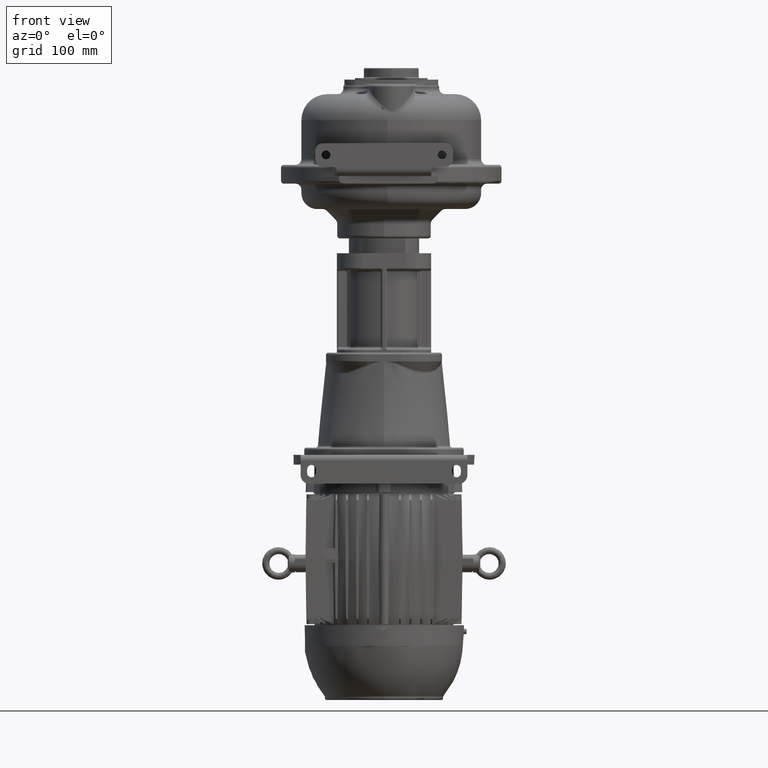
[diagram: clean part render]
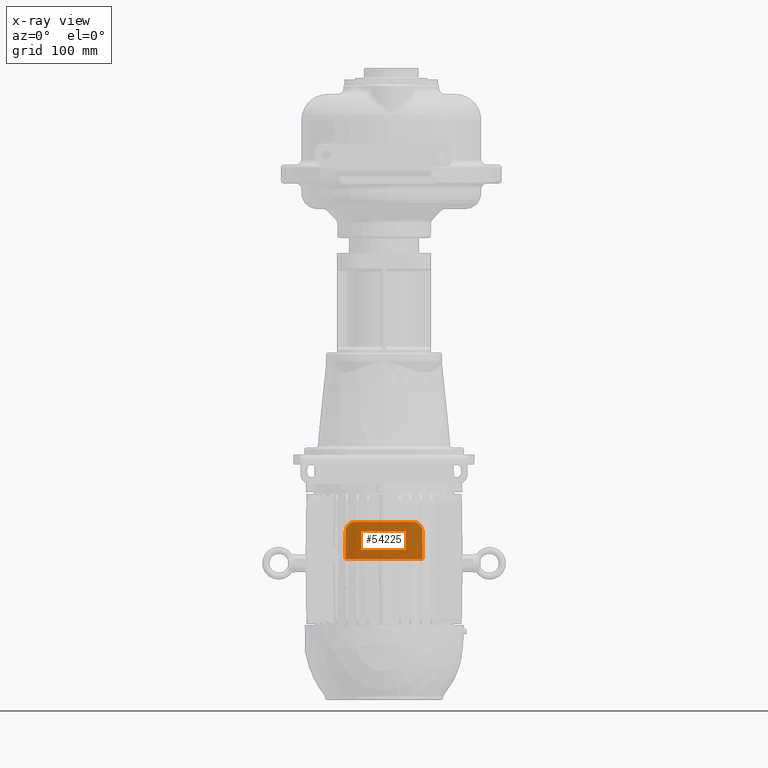
[diagram: x-ray — body ghosted, one internal face saturated and labeled with its STEP entity id]
A machine part, front view, then the same camera in x-ray: the body is ghosted and one INTERNAL B-rep face — a face not visible from any outside direction — is saturated and labeled: STEP entity #54225.
In plain terms, the highlighted planar face has unit normal (0, 0.9999, 0.0131).
Its self-contained STEP definition (entity closure, byte-faithful):
#8464=CARTESIAN_POINT('',(-3.984489355527E1,2.713258280701E2,-5.0605E2));
#8465=CARTESIAN_POINT('',(-4.037953872595E1,2.713258280701E2,-5.0605E2));
#8466=CARTESIAN_POINT('',(-4.138482653036E1,2.713266768753E2,
-5.061148402316E2));
#8467=CARTESIAN_POINT('',(-4.275122708912E1,2.713298270767E2,
-5.063554841515E2));
#8468=CARTESIAN_POINT('',(-4.400380070079E1,2.713344868574E2,
-5.067114448379E2));
#8469=CARTESIAN_POINT('',(-4.554496435602E1,2.713424098345E2,
-5.073166811339E2));
#8470=CARTESIAN_POINT('',(-4.725894084936E1,2.713551314517E2,
-5.082884855904E2));
#8471=CARTESIAN_POINT('',(-4.902366465615E1,2.713742705486E2,
-5.097505213816E2));
#8472=CARTESIAN_POINT('',(-5.050862228924E1,2.713971199197E2,
-5.114959850547E2));
#8473=CARTESIAN_POINT('',(-5.150272147131E1,2.714193885890E2,
-5.131970889074E2));
#8474=CARTESIAN_POINT('',(-5.212803067879E1,2.714394576776E2,
-5.147301667751E2));
#8475=CARTESIAN_POINT('',(-5.250032133976E1,2.714557918187E2,
-5.159779319599E2));
#8476=CARTESIAN_POINT('',(-5.275880021193E1,2.714736353378E2,
-5.173409985544E2));
#8477=CARTESIAN_POINT('',(-5.283678212413E1,2.714867821241E2,
-5.183452816838E2));
#8478=CARTESIAN_POINT('',(-5.284377981373E1,2.714937798137E2,
-5.188798352576E2));
#8529=DIRECTION('',(1.E0,0.E0,0.E0));
#8530=VECTOR('',#8529,7.968978711054E1);
#8531=CARTESIAN_POINT('',(-3.984489355527E1,2.713258280701E2,-5.0605E2));
#8532=LINE('',#8531,#8530);
#8533=DIRECTION('',(1.308847434605E-2,-1.308847434605E-2,9.998286771635E-1));
#8534=VECTOR('',#8533,3.867679095996E1);
#8535=CARTESIAN_POINT('',(-5.335E1,2.72E2,-5.5755E2));
#8536=LINE('',#8535,#8534);
#8557=DIRECTION('',(1.E0,0.E0,0.E0));
#8558=VECTOR('',#8557,2.449999999999E1);
#8559=CARTESIAN_POINT('',(1.414047977326E-11,2.72E2,-5.5755E2));
#8560=LINE('',#8559,#8558);
#12256=DIRECTION('',(1.E0,0.E0,0.E0));
#12257=VECTOR('',#12256,5.335000000001E1);
#12258=CARTESIAN_POINT('',(-5.335E1,2.72E2,-5.5755E2));
#12259=LINE('',#12258,#12257);
#12264=DIRECTION('',(1.E0,0.E0,0.E0));
#12265=VECTOR('',#12264,2.885E1);
#12266=CARTESIAN_POINT('',(2.45E1,2.72E2,-5.5755E2));
#12267=LINE('',#12266,#12265);
#28075=DIRECTION('',(-1.308847434605E-2,-1.308847434605E-2,9.998286771635E-1));
#28076=VECTOR('',#28075,3.867679095996E1);
#28077=CARTESIAN_POINT('',(5.335E1,2.72E2,-5.5755E2));
#28078=LINE('',#28077,#28076);
#28172=CARTESIAN_POINT('',(5.284377981373E1,2.714937798137E2,
-5.188798352576E2));
#28173=CARTESIAN_POINT('',(5.283678212413E1,2.714867821241E2,
-5.183452816838E2));
#28174=CARTESIAN_POINT('',(5.275880021193E1,2.714736353378E2,
-5.173409985544E2));
#28175=CARTESIAN_POINT('',(5.250032133976E1,2.714557918187E2,
-5.159779319599E2));
#28176=CARTESIAN_POINT('',(5.212803067879E1,2.714394576776E2,
-5.147301667751E2));
#28177=CARTESIAN_POINT('',(5.150272147131E1,2.714193885890E2,
-5.131970889074E2));
#28178=CARTESIAN_POINT('',(5.050862228924E1,2.713971199197E2,
-5.114959850547E2));
#28179=CARTESIAN_POINT('',(4.902366465615E1,2.713742705486E2,
-5.097505213816E2));
#28180=CARTESIAN_POINT('',(4.725894084936E1,2.713551314517E2,
-5.082884855904E2));
#28181=CARTESIAN_POINT('',(4.554496435602E1,2.713424098345E2,
-5.073166811339E2));
#28182=CARTESIAN_POINT('',(4.400380070079E1,2.713344868574E2,
-5.067114448379E2));
#28183=CARTESIAN_POINT('',(4.275122708913E1,2.713298270767E2,
-5.063554841515E2));
#28184=CARTESIAN_POINT('',(4.138482653036E1,2.713266768753E2,
-5.061148402316E2));
#28185=CARTESIAN_POINT('',(4.037953872596E1,2.713258280701E2,-5.0605E2));
#28186=CARTESIAN_POINT('',(3.984489355527E1,2.713258280701E2,-5.0605E2));
#43132=VERTEX_POINT('',#8464);
#43133=VERTEX_POINT('',#8478);
#43210=VERTEX_POINT('',#28172);
#43211=VERTEX_POINT('',#28186);
#43244=CARTESIAN_POINT('',(5.335E1,2.72E2,-5.5755E2));
#43245=VERTEX_POINT('',#43244);
#43793=CARTESIAN_POINT('',(-5.335E1,2.72E2,-5.5755E2));
#43794=VERTEX_POINT('',#43793);
#44066=CARTESIAN_POINT('',(1.414047977326E-11,2.72E2,-5.5755E2));
#44067=CARTESIAN_POINT('',(2.45E1,2.72E2,-5.5755E2));
#44068=VERTEX_POINT('',#44066);
#44069=VERTEX_POINT('',#44067);
#54204=CARTESIAN_POINT('',(5.335E1,2.72E2,-5.5755E2));
#54205=DIRECTION('',(0.E0,9.999143275740E-1,1.308959557134E-2));
#54206=DIRECTION('',(0.E0,-1.308959557134E-2,9.999143275740E-1));
#54207=AXIS2_PLACEMENT_3D('',#54204,#54205,#54206);
#54208=PLANE('',#54207);
#54210=ORIENTED_EDGE('',*,*,#54209,.T.);
#54212=ORIENTED_EDGE('',*,*,#54211,.T.);
#54214=ORIENTED_EDGE('',*,*,#54213,.T.);
#54216=ORIENTED_EDGE('',*,*,#54215,.T.);
#54217=ORIENTED_EDGE('',*,*,#53946,.F.);
#54218=ORIENTED_EDGE('',*,*,#54191,.T.);
#54220=ORIENTED_EDGE('',*,*,#54219,.F.);
#54222=ORIENTED_EDGE('',*,*,#54221,.T.);
#54223=EDGE_LOOP('',(#54210,#54212,#54214,#54216,#54217,#54218,#54220,#54222));
#54224=FACE_OUTER_BOUND('',#54223,.F.);
#54225=ADVANCED_FACE('',(#54224),#54208,.T.);
#8479=B_SPLINE_CURVE_WITH_KNOTS('',3,(#8464,#8465,#8466,#8467,#8468,#8469,#8470,
#8471,#8472,#8473,#8474,#8475,#8476,#8477,#8478),.UNSPECIFIED.,.F.,.F.,(4,1,1,1,
1,1,1,1,1,1,1,1,4),(0.E0,6.25E-2,1.25E-1,1.875E-1,2.5E-1,3.75E-1,5.E-1,6.25E-1,
7.5E-1,8.125E-1,8.75E-1,9.375E-1,1.E0),.UNSPECIFIED.);
#28187=B_SPLINE_CURVE_WITH_KNOTS('',3,(#28172,#28173,#28174,#28175,#28176,
#28177,#28178,#28179,#28180,#28181,#28182,#28183,#28184,#28185,#28186),
.UNSPECIFIED.,.F.,.F.,(4,1,1,1,1,1,1,1,1,1,1,1,4),(0.E0,6.25E-2,1.25E-1,
1.875E-1,2.5E-1,3.75E-1,5.E-1,6.25E-1,7.5E-1,8.125E-1,8.75E-1,9.375E-1,1.E0),
.UNSPECIFIED.);
#53946=EDGE_CURVE('',#43132,#43211,#8532,.T.);
#54191=EDGE_CURVE('',#43132,#43133,#8479,.T.);
#54209=EDGE_CURVE('',#44068,#44069,#8560,.T.);
#54211=EDGE_CURVE('',#44069,#43245,#12267,.T.);
#54213=EDGE_CURVE('',#43245,#43210,#28078,.T.);
#54215=EDGE_CURVE('',#43210,#43211,#28187,.T.);
#54219=EDGE_CURVE('',#43794,#43133,#8536,.T.);
#54221=EDGE_CURVE('',#43794,#44068,#12259,.T.);